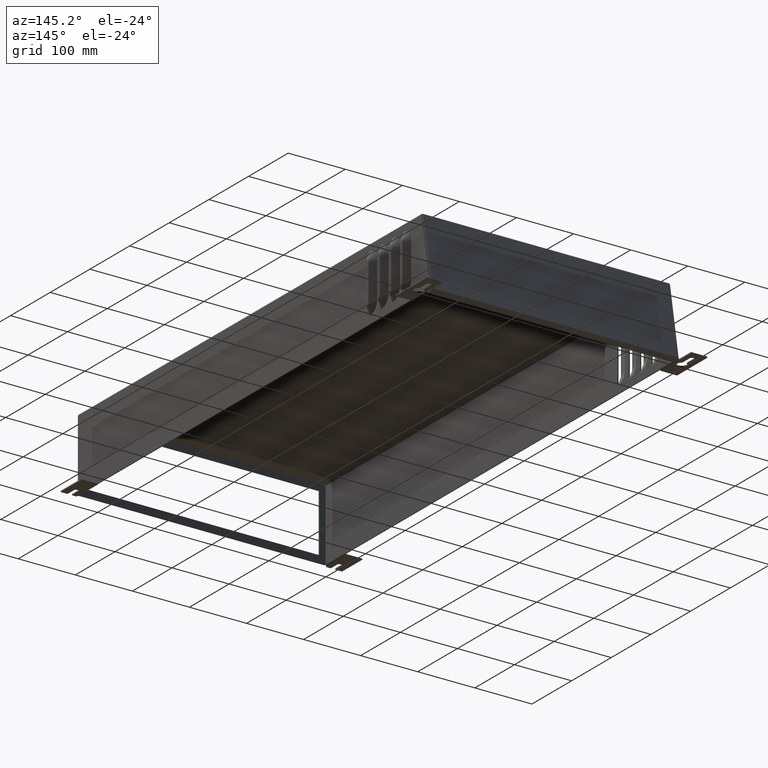
[diagram: clean part render]
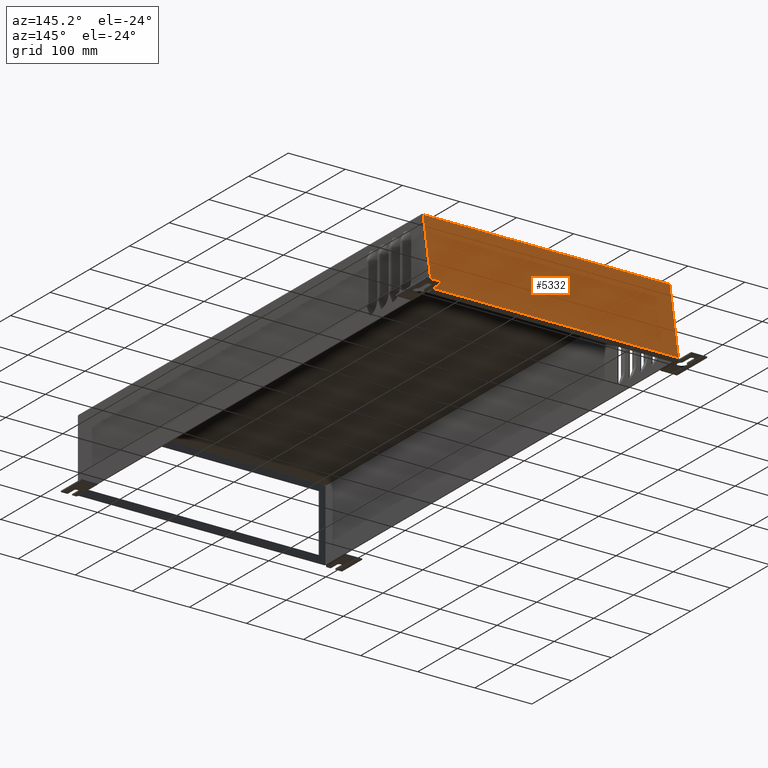
[diagram: same view with one face highlighted and labeled with its STEP entity id]
A machine part, auxiliary view. The second image highlights one B-rep face of the part: STEP entity #5332.
In plain terms, the highlighted planar face has unit normal (-0, 0.9848, 0.1736).
Its self-contained STEP definition (entity closure, byte-faithful):
#191=PLANE('',#5661);
#345=FACE_OUTER_BOUND('',#656,.T.);
#656=EDGE_LOOP('',(#3531,#3532,#3533,#3534));
#1304=LINE('',#7883,#1762);
#1322=LINE('',#7925,#1780);
#1325=LINE('',#7931,#1783);
#1326=LINE('',#7932,#1784);
#1762=VECTOR('',#6294,17.0068357864377);
#1780=VECTOR('',#6338,4.93848122911106);
#1783=VECTOR('',#6343,4.93848122911106);
#1784=VECTOR('',#6344,17.0068357864376);
#2216=VERTEX_POINT('',#7880);
#2217=VERTEX_POINT('',#7882);
#2228=VERTEX_POINT('',#7924);
#2230=VERTEX_POINT('',#7930);
#2694=EDGE_CURVE('',#2217,#2216,#1304,.T.);
#2715=EDGE_CURVE('',#2228,#2217,#1322,.T.);
#2718=EDGE_CURVE('',#2216,#2230,#1325,.T.);
#2719=EDGE_CURVE('',#2230,#2228,#1326,.T.);
#3531=ORIENTED_EDGE('',*,*,#2694,.T.);
#3532=ORIENTED_EDGE('',*,*,#2718,.T.);
#3533=ORIENTED_EDGE('',*,*,#2719,.T.);
#3534=ORIENTED_EDGE('',*,*,#2715,.T.);
#5332=ADVANCED_FACE('',(#345),#191,.T.);
#5661=AXIS2_PLACEMENT_3D('',#7929,#6341,#6342);
#6294=DIRECTION('',(-1.,2.88159817296988E-18,-1.63771926536705E-17));
#6338=DIRECTION('',(5.05990957163949E-15,0.173648177666961,-0.984807753012203));
#6341=DIRECTION('center_axis',(-6.04943780407662E-21,0.984807753012203,
0.173648177666961));
#6342=DIRECTION('ref_axis',(1.,0.,0.));
#6343=DIRECTION('',(-1.12003206663895E-16,-0.173648177666962,0.984807753012202));
#6344=DIRECTION('',(1.,5.95753325081977E-21,1.05047385058752E-21));
#7880=CARTESIAN_POINT('',(0.074707106781175,35.0968940457008,-4.87642813183435));
#7882=CARTESIAN_POINT('',(17.0815428932188,35.0968940457007,-4.87642813183435));
#7883=CARTESIAN_POINT('',(12.8298339466094,35.0968940457008,-4.87642813183435));
#7924=CARTESIAN_POINT('',(17.0815428932188,34.2393357798231,-0.0129735293005451));
#7925=CARTESIAN_POINT('',(17.0815428932188,34.2393357798231,-0.0129735293005508));
#7929=CARTESIAN_POINT('Origin',(8.57812499999999,34.6646893161874,-2.42527330699299));
#7930=CARTESIAN_POINT('',(0.0747071067811759,34.2393357798231,-0.0129735293005452));
#7931=CARTESIAN_POINT('',(0.0747071067811745,34.2393357798231,-0.0129735293005498));
#7932=CARTESIAN_POINT('',(8.57812499999999,34.2393357798231,-0.0129735293005508));